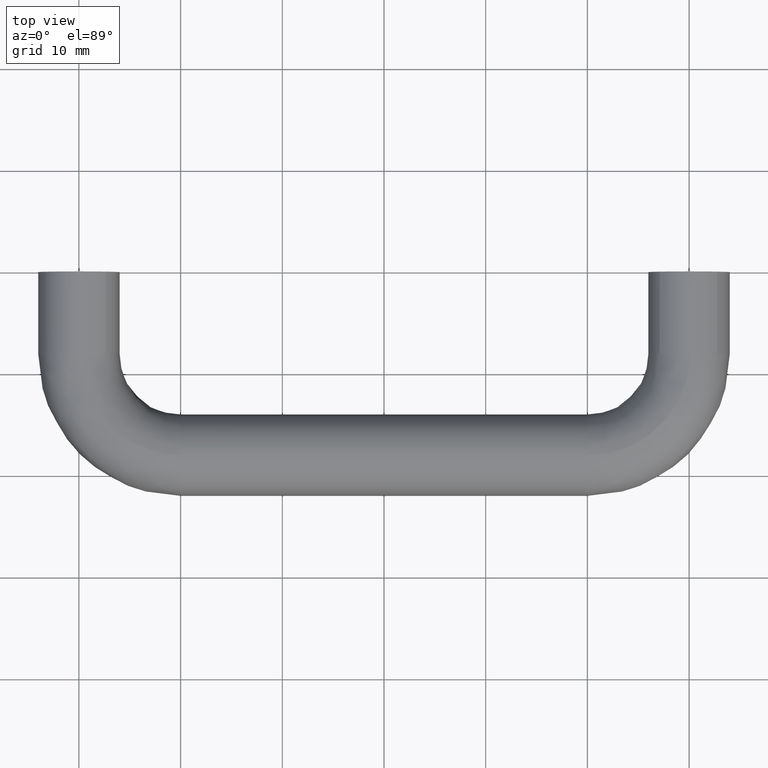
[diagram: clean part render]
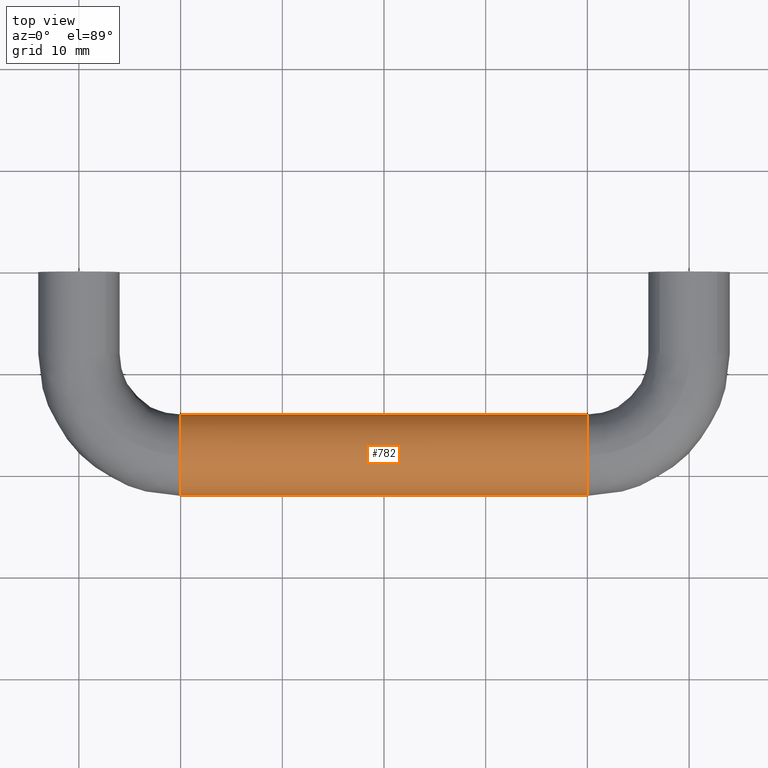
[diagram: same view with one face highlighted and labeled with its STEP entity id]
A machine part, top view. The second image highlights one B-rep face of the part: STEP entity #782.
In plain terms, the highlighted face is a freeform B-spline surface patch.
Its self-contained STEP definition (entity closure, byte-faithful):
#620=CARTESIAN_POINT('',(8.999999999730878,-15.085145242384501,-2.739273944315588));
#621=CARTESIAN_POINT('',(8.999999999730877,-12.498302470239505,0.013379172849753));
#622=CARTESIAN_POINT('',(8.999999999730877,-15.098502515950850,2.753418302775015));
#623=CARTESIAN_POINT('',(8.999999999730877,-17.851920818725873,5.654915786824165));
#624=CARTESIAN_POINT('',(8.999999999730877,-20.753418302775010,2.901497484049150));
#625=CARTESIAN_POINT('',(8.999999999730877,-23.654915786824155,0.148079181274134));
#626=CARTESIAN_POINT('',(8.999999999730877,-20.901497484049148,-2.753418302775015));
#627=CARTESIAN_POINT('',(51.025000000731282,-15.085145242384492,-2.739273944315588));
#628=CARTESIAN_POINT('',(51.025000000731289,-12.498302470239500,0.013379172849753));
#629=CARTESIAN_POINT('',(51.025000000731282,-15.098502515950839,2.753418302775015));
#630=CARTESIAN_POINT('',(51.025000000731282,-17.851920818725858,5.654915786824165));
#631=CARTESIAN_POINT('',(51.025000000731282,-20.753418302775010,2.901497484049150));
#632=CARTESIAN_POINT('',(51.025000000731282,-23.654915786824155,0.148079181274134));
#633=CARTESIAN_POINT('',(51.025000000731282,-20.901497484049141,-2.753418302775015));
#641=(BOUNDED_SURFACE()B_SPLINE_SURFACE(2,1,((#620,#627),(#621,#628),(#622,#629),(#623,#630),(#624,#631),(#625,#632),(#626,#633)),.UNSPECIFIED.,.F.,.F.,.U.)B_SPLINE_SURFACE_WITH_KNOTS((3,2,2,3),(2,2),(0.0,6.362320318050738,12.989737316020260,19.617154313989779),(0.0,42.025000001000407),.UNSPECIFIED.)GEOMETRIC_REPRESENTATION_ITEM()RATIONAL_B_SPLINE_SURFACE(((0.977505800795127,0.977505800795127),(0.718822509939086,0.718822509939086),(1.0,1.0),(0.707106781186548,0.707106781186548),(1.0,1.0),(0.707106781186548,0.707106781186548),(1.0,1.0)))REPRESENTATION_ITEM('')SURFACE());
#642=CARTESIAN_POINT('',(50.000000000051983,-15.085144465333290,-2.739273117427020));
#643=VERTEX_POINT('',#642);
#644=CARTESIAN_POINT('',(50.0,-14.0,0.0));
#645=VERTEX_POINT('',#644);
#646=CARTESIAN_POINT('',(50.000000000051983,-15.085144465333292,-2.739273117427019));
#647=CARTESIAN_POINT('',(50.0,-13.999999999999998,-1.584572868463763));
#648=CARTESIAN_POINT('',(50.0,-14.0,0.0));
#656=(BOUNDED_CURVE()B_SPLINE_CURVE(2,(#646,#647,#648),.UNSPECIFIED.,.F.,.U.)B_SPLINE_CURVE_WITH_KNOTS((3,3),(0.379684533793850,0.500000000000000),.UNSPECIFIED.)CURVE()GEOMETRIC_REPRESENTATION_ITEM()RATIONAL_B_SPLINE_CURVE((0.853759070585715,0.859041663319358,1.0))REPRESENTATION_ITEM(''));
#657=EDGE_CURVE('',#643,#645,#656,.T.);
#658=ORIENTED_EDGE('',*,*,#657,.F.);
#659=CARTESIAN_POINT('',(9.999999999928459,-15.085144783316510,-2.739273455781886));
#660=VERTEX_POINT('',#659);
#661=CARTESIAN_POINT('',(9.999999999928459,-15.085144783316510,-2.739273455781886));
#662=CARTESIAN_POINT('',(50.000000000051983,-15.085144465333290,-2.739273117427020));
#663=QUASI_UNIFORM_CURVE('',1,(#661,#662),.UNSPECIFIED.,.F.,.U.);
#664=EDGE_CURVE('',#660,#643,#663,.T.);
#665=ORIENTED_EDGE('',*,*,#664,.F.);
#666=CARTESIAN_POINT('',(10.0,-14.0,0.0));
#667=VERTEX_POINT('',#666);
#668=CARTESIAN_POINT('',(9.999999999928459,-15.085144783316512,-2.739273455781886));
#669=CARTESIAN_POINT('',(10.0,-14.000000000000004,-1.584572749257046));
#670=CARTESIAN_POINT('',(10.0,-14.0,0.0));
#678=(BOUNDED_CURVE()B_SPLINE_CURVE(2,(#668,#669,#670),.UNSPECIFIED.,.F.,.U.)B_SPLINE_CURVE_WITH_KNOTS((3,3),(0.379684541569276,0.500000000000000),.UNSPECIFIED.)CURVE()GEOMETRIC_REPRESENTATION_ITEM()RATIONAL_B_SPLINE_CURVE((0.853759071268494,0.859041672428836,1.0))REPRESENTATION_ITEM(''));
#679=EDGE_CURVE('',#660,#667,#678,.T.);
#680=ORIENTED_EDGE('',*,*,#679,.T.);
#681=CARTESIAN_POINT('',(9.999999999977183,-18.050264159744199,3.999684176812615));
#682=VERTEX_POINT('',#681);
#683=CARTESIAN_POINT('',(10.0,-14.0,0.0));
#684=CARTESIAN_POINT('',(10.000000000000002,-13.999999999999998,4.000000000000000));
#685=CARTESIAN_POINT('',(10.0,-18.0,4.0));
#686=CARTESIAN_POINT('',(10.0,-18.025133072178356,4.0));
#687=CARTESIAN_POINT('',(9.999999999977183,-18.050264159744195,3.999684176812615));
#695=(BOUNDED_CURVE()B_SPLINE_CURVE(2,(#683,#684,#685,#686,#687),.UNSPECIFIED.,.F.,.U.)B_SPLINE_CURVE_WITH_KNOTS((3,2,3),(0.500000000000000,0.750000000000000,0.752215704096808),.UNSPECIFIED.)CURVE()GEOMETRIC_REPRESENTATION_ITEM()RATIONAL_B_SPLINE_CURVE((1.0,0.707106781186548,1.0,0.997404141180592,0.994854295601350))REPRESENTATION_ITEM(''));
#696=EDGE_CURVE('',#667,#682,#695,.T.);
#697=ORIENTED_EDGE('',*,*,#696,.T.);
#698=CARTESIAN_POINT('',(10.0,-22.0,0.0));
#699=VERTEX_POINT('',#698);
#700=CARTESIAN_POINT('',(9.999999999977183,-18.050264159744192,3.999684176812615));
#701=CARTESIAN_POINT('',(10.0,-22.0,3.950047719212881));
#702=CARTESIAN_POINT('',(10.0,-22.0,0.0));
#710=(BOUNDED_CURVE()B_SPLINE_CURVE(2,(#700,#701,#702),.UNSPECIFIED.,.F.,.U.)B_SPLINE_CURVE_WITH_KNOTS((3,3),(0.752215704096809,1.0),.UNSPECIFIED.)CURVE()GEOMETRIC_REPRESENTATION_ITEM()RATIONAL_B_SPLINE_CURVE((0.994854295601348,0.709702640005957,1.0))REPRESENTATION_ITEM(''));
#711=EDGE_CURVE('',#682,#699,#710,.T.);
#712=ORIENTED_EDGE('',*,*,#711,.T.);
#713=CARTESIAN_POINT('',(10.0,-20.901498075328391,-2.753417679696430));
#714=VERTEX_POINT('',#713);
#715=CARTESIAN_POINT('',(10.0,-22.0,0.0));
#716=CARTESIAN_POINT('',(10.000000000000002,-22.0,-1.595837188198000));
#717=CARTESIAN_POINT('',(10.0,-20.901498075328391,-2.753417679696430));
#725=(BOUNDED_CURVE()B_SPLINE_CURVE(2,(#715,#716,#717),.UNSPECIFIED.,.F.,.U.)B_SPLINE_CURVE_WITH_KNOTS((3,3),(0.0,0.121049461843310),.UNSPECIFIED.)CURVE()GEOMETRIC_REPRESENTATION_ITEM()RATIONAL_B_SPLINE_CURVE((1.0,0.858181733940307,0.853699666169231))REPRESENTATION_ITEM(''));
#726=EDGE_CURVE('',#699,#714,#725,.T.);
#727=ORIENTED_EDGE('',*,*,#726,.T.);
#728=CARTESIAN_POINT('',(50.000000000000007,-20.901498082715289,-2.753417671912254));
#729=VERTEX_POINT('',#728);
#730=CARTESIAN_POINT('',(10.0,-20.901498075328391,-2.753417679696430));
#731=CARTESIAN_POINT('',(50.000000000000007,-20.901498082715289,-2.753417671912254));
#732=QUASI_UNIFORM_CURVE('',1,(#730,#731),.UNSPECIFIED.,.F.,.U.);
#733=EDGE_CURVE('',#714,#729,#732,.T.);
#734=ORIENTED_EDGE('',*,*,#733,.T.);
#735=CARTESIAN_POINT('',(50.0,-22.0,0.0));
#736=VERTEX_POINT('',#735);
#737=CARTESIAN_POINT('',(50.0,-22.0,0.0));
#738=CARTESIAN_POINT('',(49.999999999999986,-22.0,-1.595837175758675));
#739=CARTESIAN_POINT('',(50.000000000000007,-20.901498082715289,-2.753417671912254));
#747=(BOUNDED_CURVE()B_SPLINE_CURVE(2,(#737,#738,#739),.UNSPECIFIED.,.F.,.U.)B_SPLINE_CURVE_WITH_KNOTS((3,3),(0.0,0.121049461033561),.UNSPECIFIED.)CURVE()GEOMETRIC_REPRESENTATION_ITEM()RATIONAL_B_SPLINE_CURVE((1.0,0.858181734888987,0.853699666229196))REPRESENTATION_ITEM(''));
#748=EDGE_CURVE('',#736,#729,#747,.T.);
#749=ORIENTED_EDGE('',*,*,#748,.F.);
#750=CARTESIAN_POINT('',(50.000000000706883,-18.100520384777500,3.998736757057681));
#751=VERTEX_POINT('',#750);
#752=CARTESIAN_POINT('',(50.000000000706876,-18.100520384777496,3.998736757057681));
#753=CARTESIAN_POINT('',(49.999999999999993,-21.999999999999996,3.900711498859729));
#754=CARTESIAN_POINT('',(50.0,-22.0,0.0));
#762=(BOUNDED_CURVE()B_SPLINE_CURVE(2,(#752,#753,#754),.UNSPECIFIED.,.F.,.U.)B_SPLINE_CURVE_WITH_KNOTS((3,3),(0.754420108493106,1.0),.UNSPECIFIED.)CURVE()GEOMETRIC_REPRESENTATION_ITEM()RATIONAL_B_SPLINE_CURVE((0.989826157087315,0.712285260402750,1.0))REPRESENTATION_ITEM(''));
#763=EDGE_CURVE('',#751,#736,#762,.T.);
#764=ORIENTED_EDGE('',*,*,#763,.F.);
#765=CARTESIAN_POINT('',(50.0,-14.0,0.0));
#766=CARTESIAN_POINT('',(50.0,-13.999999999999998,4.000000000000000));
#767=CARTESIAN_POINT('',(50.0,-18.0,4.0));
#768=CARTESIAN_POINT('',(49.999999999999993,-18.050268131499084,4.000000000000001));
#769=CARTESIAN_POINT('',(50.000000000706883,-18.100520384777493,3.998736757057680));
#777=(BOUNDED_CURVE()B_SPLINE_CURVE(2,(#765,#766,#767,#768,#769),.UNSPECIFIED.,.F.,.U.)B_SPLINE_CURVE_WITH_KNOTS((3,2,3),(0.500000000000000,0.750000000000000,0.754420108493105),.UNSPECIFIED.)CURVE()GEOMETRIC_REPRESENTATION_ITEM()RATIONAL_B_SPLINE_CURVE((1.0,0.707106781186548,1.0,0.994821520783799,0.989826157087317))REPRESENTATION_ITEM(''));
#778=EDGE_CURVE('',#645,#751,#777,.T.);
#779=ORIENTED_EDGE('',*,*,#778,.F.);
#780=EDGE_LOOP('',(#658,#665,#680,#697,#712,#727,#734,#749,#764,#779));
#781=FACE_OUTER_BOUND('',#780,.T.);
#782=ADVANCED_FACE('',(#781),#641,.T.);